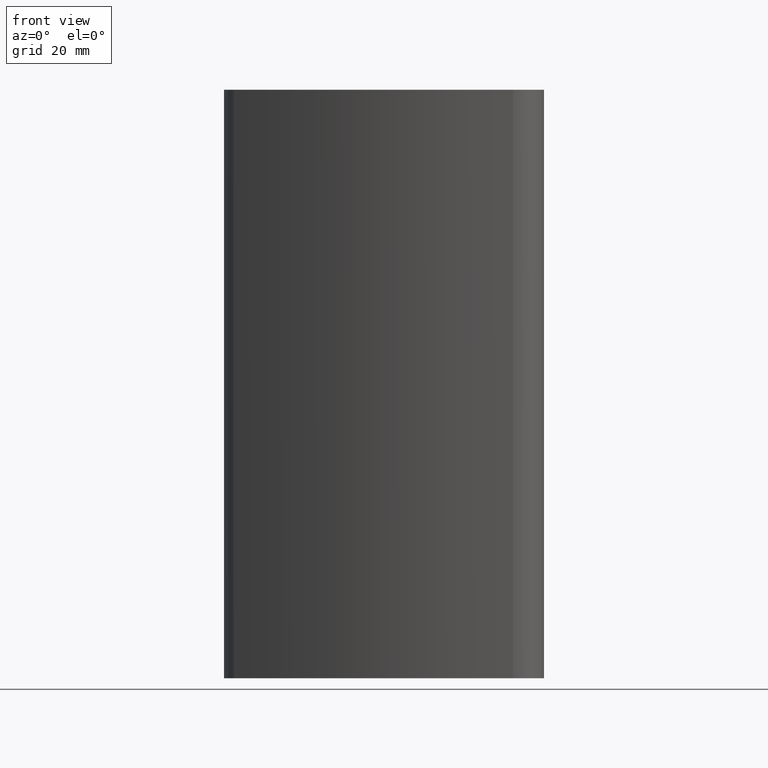
[diagram: clean part render]
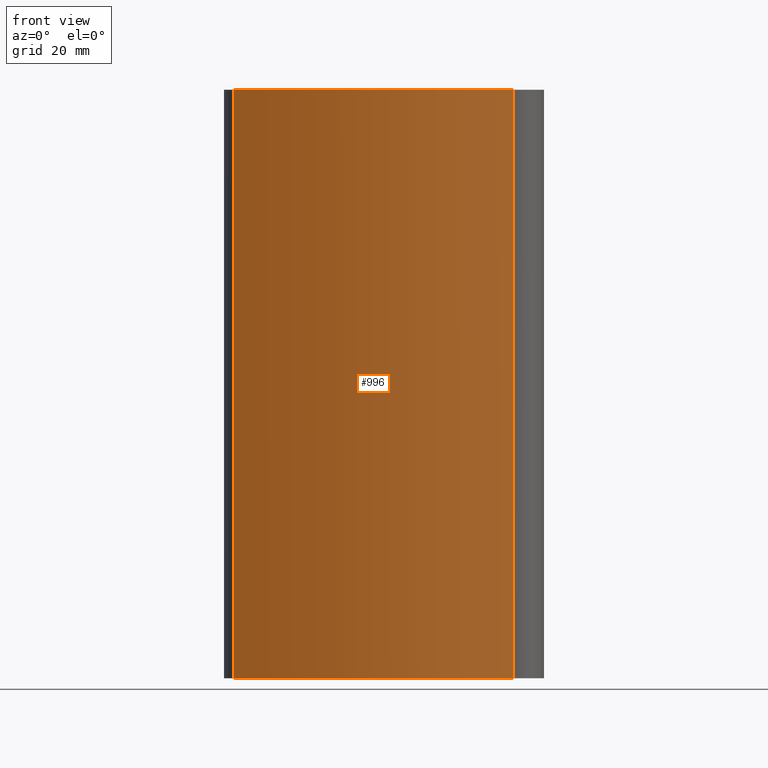
[diagram: same view with one face highlighted and labeled with its STEP entity id]
A machine part, front view. The second image highlights one B-rep face of the part: STEP entity #996.
In plain terms, the highlighted cylindrical surface (partial cylindrical patch) has radius 80 mm, axis along (0, 0, 1).
Its self-contained STEP definition (entity closure, byte-faithful):
#58=FACE_OUTER_BOUND('',#111,.T.);
#111=EDGE_LOOP('',(#715,#716,#717,#718));
#185=LINE('',#1614,#263);
#186=LINE('',#1620,#264);
#263=VECTOR('',#1284,100.);
#264=VECTOR('',#1291,100.);
#333=CIRCLE('',#1078,79.9999999999343);
#334=CIRCLE('',#1079,79.9999999999343);
#421=VERTEX_POINT('',#1611);
#422=VERTEX_POINT('',#1613);
#423=VERTEX_POINT('',#1617);
#424=VERTEX_POINT('',#1619);
#542=EDGE_CURVE('',#421,#422,#185,.T.);
#544=EDGE_CURVE('',#421,#423,#333,.T.);
#545=EDGE_CURVE('',#423,#424,#186,.T.);
#546=EDGE_CURVE('',#422,#424,#334,.T.);
#715=ORIENTED_EDGE('',*,*,#544,.T.);
#716=ORIENTED_EDGE('',*,*,#545,.T.);
#717=ORIENTED_EDGE('',*,*,#546,.F.);
#718=ORIENTED_EDGE('',*,*,#542,.F.);
#952=CYLINDRICAL_SURFACE('',#1077,79.9999999999343);
#996=ADVANCED_FACE('',(#58),#952,.T.);
#1077=AXIS2_PLACEMENT_3D('',#1616,#1287,#1288);
#1078=AXIS2_PLACEMENT_3D('',#1618,#1289,#1290);
#1079=AXIS2_PLACEMENT_3D('',#1621,#1292,#1293);
#1284=DIRECTION('',(0.,0.,1.));
#1287=DIRECTION('center_axis',(0.,0.,1.));
#1288=DIRECTION('ref_axis',(-0.65899813661131,-0.752144571171541,0.));
#1289=DIRECTION('center_axis',(0.,0.,1.));
#1290=DIRECTION('ref_axis',(-0.65899813661131,-0.752144571171541,0.));
#1291=DIRECTION('',(0.,0.,1.));
#1292=DIRECTION('center_axis',(0.,0.,1.));
#1293=DIRECTION('ref_axis',(-0.65899813661131,-0.752144571171541,0.));
#1611=CARTESIAN_POINT('',(-29.7588409341033,-4.73879542079442,0.));
#1613=CARTESIAN_POINT('',(-29.7588409341033,-4.73879542079442,100.));
#1614=CARTESIAN_POINT('',(-29.7588409341033,-4.73879542079442,0.));
#1616=CARTESIAN_POINT('Origin',(22.9610099947581,55.4327702728795,0.));
#1617=CARTESIAN_POINT('',(17.6918410865978,-24.3935152413968,0.));
#1618=CARTESIAN_POINT('Origin',(22.9610099947581,55.4327702728795,0.));
#1619=CARTESIAN_POINT('',(17.6918410865978,-24.3935152413968,100.));
#1620=CARTESIAN_POINT('',(17.6918410865978,-24.3935152413968,0.));
#1621=CARTESIAN_POINT('Origin',(22.9610099947581,55.4327702728795,100.));